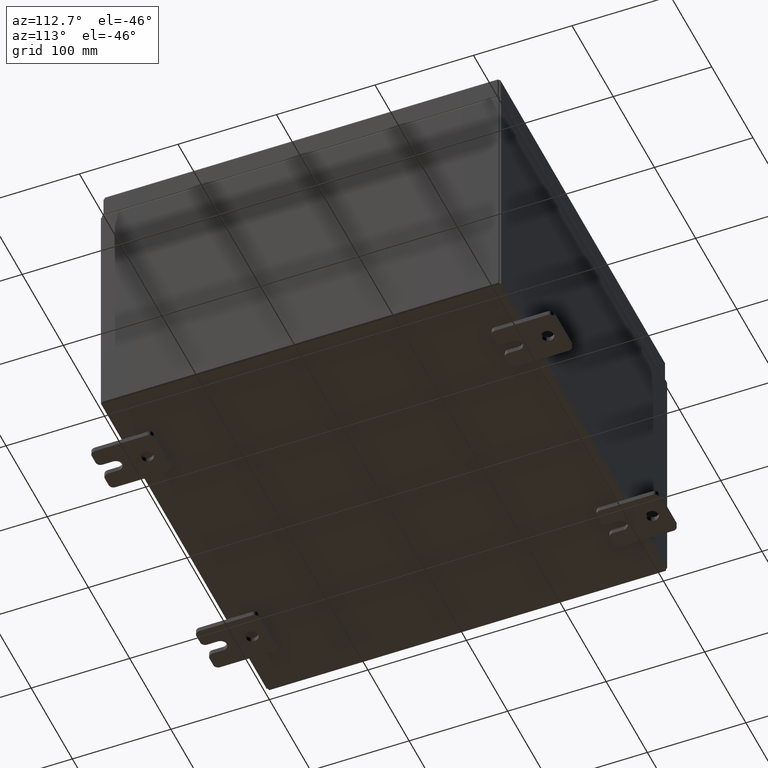
[diagram: clean part render]
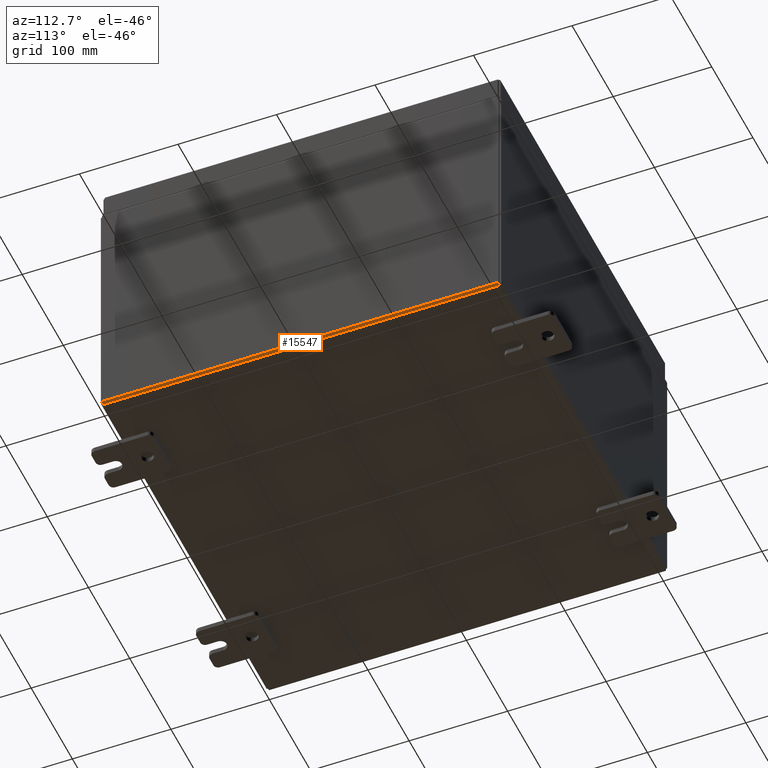
[diagram: same view with one face highlighted and labeled with its STEP entity id]
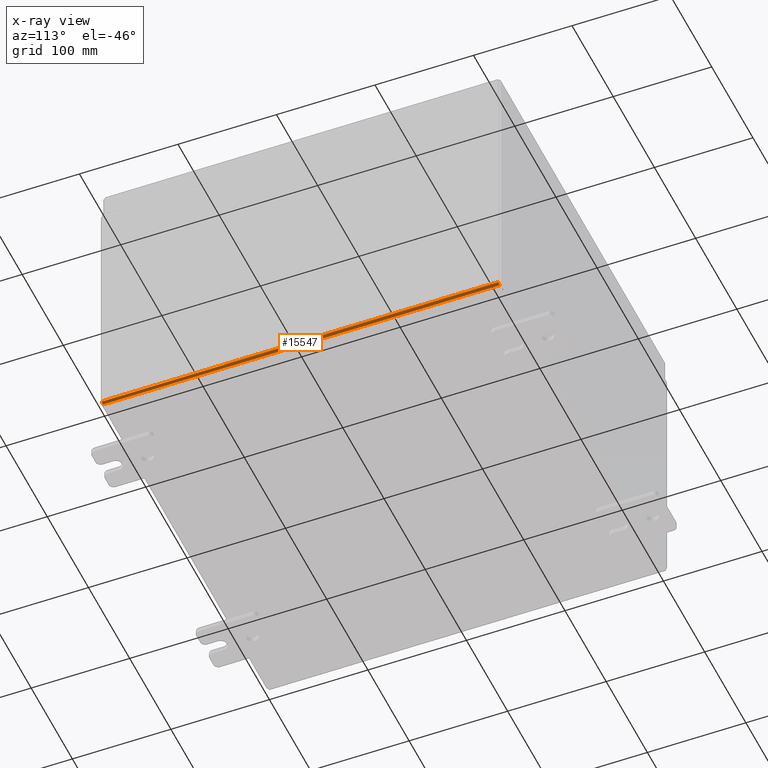
[diagram: x-ray of the same camera — body ghosted, the highlighted face saturated]
A machine part, auxiliary view. The second image highlights one B-rep face of the part: STEP entity #15547.
The next image is the same camera in x-ray: the body ghosted, the highlighted face saturated — about 0% of this face is hidden behind the body in this view.
In plain terms, the highlighted cylindrical surface (edge-blend (fillet) strip) has radius 2.2276 mm, axis along (0, 1, 0).
Its self-contained STEP definition (entity closure, byte-faithful):
#230 = VERTEX_POINT ( 'NONE', #6481 ) ;
#663 = CIRCLE ( 'NONE', #46079, 0.08770000000000009700 ) ;
#1030 = CIRCLE ( 'NONE', #51291, 0.08770000000000009700 ) ;
#2913 = LINE ( 'NONE', #34670, #54266 ) ;
#3355 = EDGE_CURVE ( 'NONE', #62497, #230, #1030, .T. ) ;
#5757 = DIRECTION ( 'NONE',  ( -0.0000000000000000000, -1.000000000000000000, -0.0000000000000000000 ) ) ;
#6481 = CARTESIAN_POINT ( 'NONE',  ( 7.912299999999998300, 7.925300000000000000, -0.07469999999999994700 ) ) ;
#9258 = EDGE_CURVE ( 'NONE', #230, #47559, #19667, .T. ) ;
#10580 = CARTESIAN_POINT ( 'NONE',  ( 7.912299999999998300, 7.925300000000000000, 0.01300000000000015200 ) ) ;
#13799 = CARTESIAN_POINT ( 'NONE',  ( 7.912299999999998300, -7.925300000000000000, 0.01300000000000015200 ) ) ;
#13890 = CARTESIAN_POINT ( 'NONE',  ( 7.999999999999999100, 7.925300000000000000, 0.01299999999999984700 ) ) ;
#15469 = DIRECTION ( 'NONE',  ( 0.0000000000000000000, 0.0000000000000000000, 1.000000000000000000 ) ) ;
#15547 = ADVANCED_FACE ( 'NONE', ( #32006 ), #43294, .T. ) ;
#16135 = AXIS2_PLACEMENT_3D ( 'NONE', #42246, #47276, #61662 ) ;
#18709 = DIRECTION ( 'NONE',  ( 0.0000000000000000000, 0.0000000000000000000, 1.000000000000000000 ) ) ;
#19387 = CARTESIAN_POINT ( 'NONE',  ( 7.912299999999998300, 7.925300000000000000, -0.07469999999999994700 ) ) ;
#19667 = LINE ( 'NONE', #19387, #56569 ) ;
#22929 = EDGE_CURVE ( 'NONE', #62497, #58075, #2913, .T. ) ;
#23083 = CARTESIAN_POINT ( 'NONE',  ( 7.912299999999998300, -7.925300000000000900, -0.07470000000000000300 ) ) ;
#29318 = ORIENTED_EDGE ( 'NONE', *, *, #32972, .F. ) ;
#32006 = FACE_OUTER_BOUND ( 'NONE', #36252, .T. ) ;
#32068 = CARTESIAN_POINT ( 'NONE',  ( 7.999999999999999100, -7.925300000000000000, 0.01299999999999984300 ) ) ;
#32972 = EDGE_CURVE ( 'NONE', #47559, #58075, #663, .T. ) ;
#33676 = ORIENTED_EDGE ( 'NONE', *, *, #9258, .F. ) ;
#33883 = DIRECTION ( 'NONE',  ( -0.0000000000000000000, -1.000000000000000000, -0.0000000000000000000 ) ) ;
#34670 = CARTESIAN_POINT ( 'NONE',  ( 7.999999999999999100, -7.925300000000000000, 0.01299999999999984700 ) ) ;
#36252 = EDGE_LOOP ( 'NONE', ( #33676, #58189, #62512, #29318 ) ) ;
#42246 = CARTESIAN_POINT ( 'NONE',  ( 7.912299999999998300, 7.925300000000000000, 0.01300000000000015200 ) ) ;
#43294 = CYLINDRICAL_SURFACE ( 'NONE', #16135, 0.08770000000000026400 ) ;
#44332 = DIRECTION ( 'NONE',  ( 0.0000000000000000000, 1.000000000000000000, 0.0000000000000000000 ) ) ;
#46079 = AXIS2_PLACEMENT_3D ( 'NONE', #13799, #47507, #18709 ) ;
#47276 = DIRECTION ( 'NONE',  ( 0.0000000000000000000, 1.000000000000000000, 0.0000000000000000000 ) ) ;
#47507 = DIRECTION ( 'NONE',  ( -0.0000000000000000000, -1.000000000000000000, -0.0000000000000000000 ) ) ;
#47559 = VERTEX_POINT ( 'NONE', #23083 ) ;
#51291 = AXIS2_PLACEMENT_3D ( 'NONE', #10580, #44332, #15469 ) ;
#54266 = VECTOR ( 'NONE', #5757, 39.37007874015748100 ) ;
#56569 = VECTOR ( 'NONE', #33883, 39.37007874015748100 ) ;
#58075 = VERTEX_POINT ( 'NONE', #32068 ) ;
#58189 = ORIENTED_EDGE ( 'NONE', *, *, #3355, .F. ) ;
#61662 = DIRECTION ( 'NONE',  ( 1.000000000000000000, 0.0000000000000000000, -3.528701887483225300E-015 ) ) ;
#62497 = VERTEX_POINT ( 'NONE', #13890 ) ;
#62512 = ORIENTED_EDGE ( 'NONE', *, *, #22929, .T. ) ;